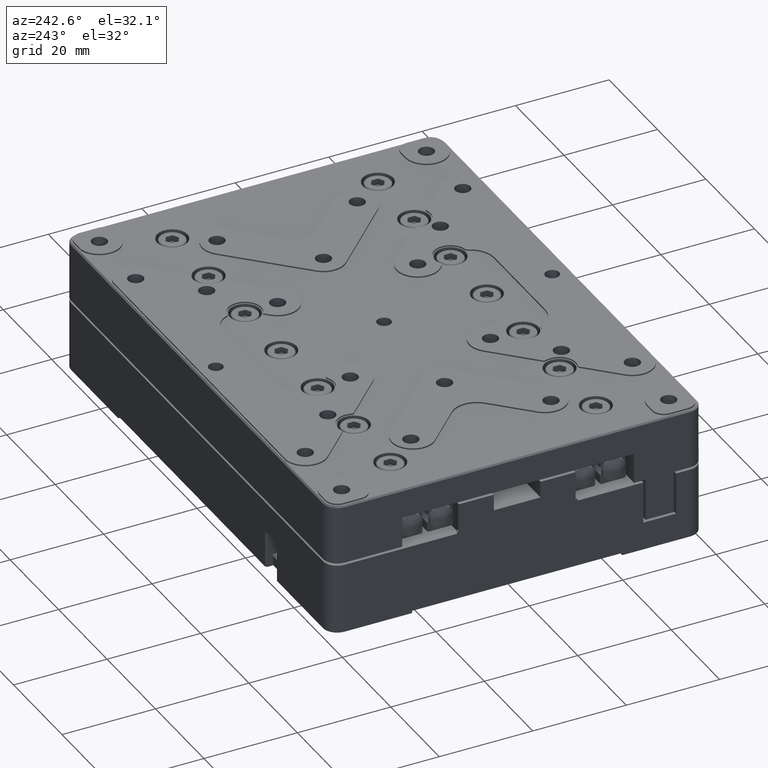
[diagram: clean part render]
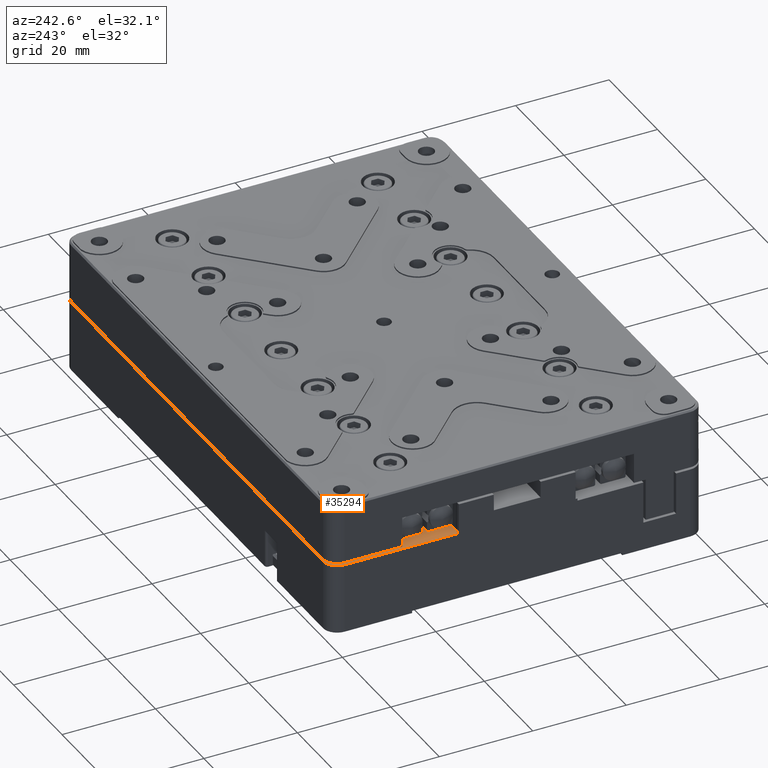
[diagram: same view with one face highlighted and labeled with its STEP entity id]
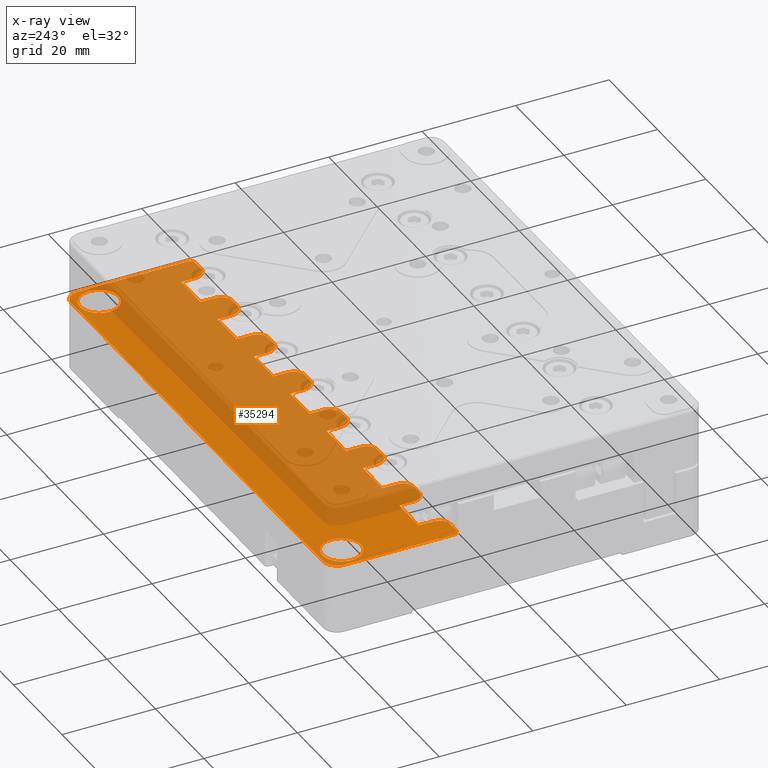
[diagram: x-ray of the same camera — body ghosted, the highlighted face saturated]
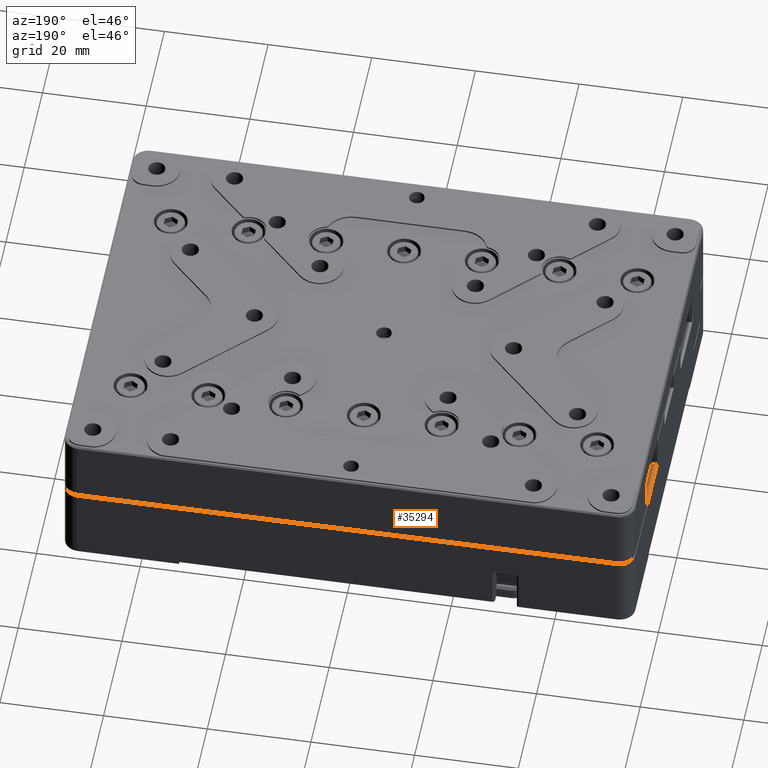
[diagram: same view with one face highlighted and labeled with its STEP entity id]
A machine part, auxiliary view. The second image highlights one B-rep face of the part: STEP entity #35294.
The next image is the same camera in x-ray: the body ghosted, the highlighted face saturated — about 69% of this face is hidden behind the body in this view.
A second angle (auxiliary view) of the same face is appended — the face is thin or edge-on in the first view.
In plain terms, the highlighted planar face has unit normal (0, 0, 1).
Its self-contained STEP definition (entity closure, byte-faithful):
#8 = ORIENTED_EDGE ( 'NONE', *, *, #34213, .T. ) ;
#56 = LINE ( 'NONE', #35349, #21487 ) ;
#88 = CARTESIAN_POINT ( 'NONE',  ( 52.00000000000000000, 37.00000000000000000, 0.000000000000000000 ) ) ;
#169 = CARTESIAN_POINT ( 'NONE',  ( -34.00000000000000000, 14.90000000000000036, 0.000000000000000000 ) ) ;
#237 = DIRECTION ( 'NONE',  ( 0.000000000000000000, -1.000000000000000000, 0.000000000000000000 ) ) ;
#279 = ORIENTED_EDGE ( 'NONE', *, *, #969, .T. ) ;
#371 = DIRECTION ( 'NONE',  ( 0.000000000000000000, 0.000000000000000000, 1.000000000000000000 ) ) ;
#384 = CARTESIAN_POINT ( 'NONE',  ( 41.00000000000000000, 40.00000000000000000, 0.000000000000000000 ) ) ;
#410 = ORIENTED_EDGE ( 'NONE', *, *, #24579, .T. ) ;
#439 = ORIENTED_EDGE ( 'NONE', *, *, #22421, .T. ) ;
#540 = EDGE_CURVE ( 'NONE', #7818, #23297, #7213, .T. ) ;
#548 = LINE ( 'NONE', #11455, #1921 ) ;
#616 = VERTEX_POINT ( 'NONE', #30516 ) ;
#669 = DIRECTION ( 'NONE',  ( 1.000000000000000000, 0.000000000000000000, 0.000000000000000000 ) ) ;
#884 = LINE ( 'NONE', #30964, #9621 ) ;
#904 = CARTESIAN_POINT ( 'NONE',  ( -6.500000000000000000, 14.90000000000000036, 0.000000000000000000 ) ) ;
#969 = EDGE_CURVE ( 'NONE', #1620, #4986, #1879, .T. ) ;
#1012 = VERTEX_POINT ( 'NONE', #9123 ) ;
#1130 = EDGE_CURVE ( 'NONE', #616, #27416, #30072, .T. ) ;
#1194 = LINE ( 'NONE', #6380, #16790 ) ;
#1256 = CARTESIAN_POINT ( 'NONE',  ( -55.00000000000000000, 12.40000000000000036, 0.000000000000000000 ) ) ;
#1257 = DIRECTION ( 'NONE',  ( 1.000000000000000000, 0.000000000000000000, 0.000000000000000000 ) ) ;
#1270 = ORIENTED_EDGE ( 'NONE', *, *, #14767, .T. ) ;
#1307 = AXIS2_PLACEMENT_3D ( 'NONE', #16199, #29673, #13682 ) ;
#1453 = VERTEX_POINT ( 'NONE', #30379 ) ;
#1620 = VERTEX_POINT ( 'NONE', #6376 ) ;
#1879 = CIRCLE ( 'NONE', #34113, 2.500000000000002220 ) ;
#1906 = LINE ( 'NONE', #10151, #13418 ) ;
#1921 = VECTOR ( 'NONE', #22387, 1000.000000000000000 ) ;
#1945 = CIRCLE ( 'NONE', #26524, 2.500000000000002220 ) ;
#2018 = CIRCLE ( 'NONE', #6019, 2.499999999999999556 ) ;
#2057 = AXIS2_PLACEMENT_3D ( 'NONE', #2404, #10302, #15650 ) ;
#2111 = VECTOR ( 'NONE', #20872, 1000.000000000000000 ) ;
#2141 = DIRECTION ( 'NONE',  ( 1.000000000000000000, 0.000000000000000000, 0.000000000000000000 ) ) ;
#2315 = EDGE_CURVE ( 'NONE', #12639, #19228, #13784, .T. ) ;
#2346 = LINE ( 'NONE', #26870, #26574 ) ;
#2404 = CARTESIAN_POINT ( 'NONE',  ( -50.00000000000000000, 35.00000000000000000, 0.000000000000000000 ) ) ;
#2659 = VECTOR ( 'NONE', #5548, 1000.000000000000000 ) ;
#2723 = EDGE_CURVE ( 'NONE', #3722, #11448, #21479, .T. ) ;
#2745 = LINE ( 'NONE', #3091, #22636 ) ;
#2784 = AXIS2_PLACEMENT_3D ( 'NONE', #19147, #22371, #3232 ) ;
#2846 = EDGE_CURVE ( 'NONE', #12173, #3722, #20167, .T. ) ;
#2912 = CARTESIAN_POINT ( 'NONE',  ( -38.50000000000000000, 12.40000000000000036, 0.000000000000000000 ) ) ;
#2963 = ORIENTED_EDGE ( 'NONE', *, *, #31143, .T. ) ;
#3021 = CARTESIAN_POINT ( 'NONE',  ( 36.50000000000000000, 14.90000000000000036, 0.000000000000000000 ) ) ;
#3067 = PLANE ( 'NONE',  #34571 ) ;
#3072 = VERTEX_POINT ( 'NONE', #32505 ) ;
#3091 = CARTESIAN_POINT ( 'NONE',  ( -55.00000000000000000, 12.40000000000000036, 0.000000000000000000 ) ) ;
#3168 = EDGE_CURVE ( 'NONE', #19228, #12739, #14212, .T. ) ;
#3232 = DIRECTION ( 'NONE',  ( 1.000000000000000000, 0.000000000000000000, 0.000000000000000000 ) ) ;
#3278 = DIRECTION ( 'NONE',  ( 1.000000000000000000, 0.000000000000000000, 0.000000000000000000 ) ) ;
#3722 = VERTEX_POINT ( 'NONE', #6304 ) ;
#3865 = DIRECTION ( 'NONE',  ( 0.000000000000000000, -1.000000000000000000, 0.000000000000000000 ) ) ;
#3875 = CARTESIAN_POINT ( 'NONE',  ( 55.00000000000000000, 37.00000000000000000, 0.000000000000000000 ) ) ;
#3953 = LINE ( 'NONE', #1256, #24288 ) ;
#4068 = LINE ( 'NONE', #23575, #19017 ) ;
#4143 = ORIENTED_EDGE ( 'NONE', *, *, #12255, .T. ) ;
#4409 = EDGE_CURVE ( 'NONE', #30259, #12173, #15308, .T. ) ;
#4439 = DIRECTION ( 'NONE',  ( 1.000000000000000000, 0.000000000000000000, 0.000000000000000000 ) ) ;
#4566 = CARTESIAN_POINT ( 'NONE',  ( 4.000000000000000000, 14.90000000000000036, 0.000000000000000000 ) ) ;
#4607 = ORIENTED_EDGE ( 'NONE', *, *, #540, .T. ) ;
#4695 = VECTOR ( 'NONE', #3865, 1000.000000000000000 ) ;
#4728 = VECTOR ( 'NONE', #21970, 1000.000000000000000 ) ;
#4734 = CARTESIAN_POINT ( 'NONE',  ( 54.12500000000000000, 35.00000000000000000, 0.000000000000000000 ) ) ;
#4829 = ORIENTED_EDGE ( 'NONE', *, *, #34368, .T. ) ;
#4844 = CARTESIAN_POINT ( 'NONE',  ( -21.50000000000000000, 12.40000000000000036, 0.000000000000000000 ) ) ;
#4863 = CARTESIAN_POINT ( 'NONE',  ( 41.00000000000000000, 18.00000000000000000, 0.000000000000000000 ) ) ;
#4944 = VERTEX_POINT ( 'NONE', #28589 ) ;
#4986 = VERTEX_POINT ( 'NONE', #7083 ) ;
#5123 = EDGE_CURVE ( 'NONE', #14443, #15917, #10197, .T. ) ;
#5145 = CARTESIAN_POINT ( 'NONE',  ( -6.500000000000000000, 12.40000000000000036, 0.000000000000000000 ) ) ;
#5295 = CARTESIAN_POINT ( 'NONE',  ( -55.00000000000000000, 18.00000000000000000, 0.000000000000000000 ) ) ;
#5299 = AXIS2_PLACEMENT_3D ( 'NONE', #18022, #33966, #34315 ) ;
#5332 = ORIENTED_EDGE ( 'NONE', *, *, #9018, .T. ) ;
#5383 = ORIENTED_EDGE ( 'NONE', *, *, #16714, .T. ) ;
#5418 = CARTESIAN_POINT ( 'NONE',  ( -45.87500000000000000, 35.00000000000000000, 0.000000000000000000 ) ) ;
#5540 = EDGE_CURVE ( 'NONE', #3072, #32799, #18306, .T. ) ;
#5548 = DIRECTION ( 'NONE',  ( 0.000000000000000000, -1.000000000000000000, 0.000000000000000000 ) ) ;
#5655 = CARTESIAN_POINT ( 'NONE',  ( -51.50000000000000000, 12.40000000000000036, 0.000000000000000000 ) ) ;
#5726 = DIRECTION ( 'NONE',  ( 0.000000000000000000, -1.000000000000000000, 0.000000000000000000 ) ) ;
#5742 = FACE_OUTER_BOUND ( 'NONE', #19853, .T. ) ;
#5876 = EDGE_CURVE ( 'NONE', #32799, #31257, #20718, .T. ) ;
#6019 = AXIS2_PLACEMENT_3D ( 'NONE', #904, #17012, #11641 ) ;
#6059 = AXIS2_PLACEMENT_3D ( 'NONE', #31798, #27827, #16689 ) ;
#6067 = VECTOR ( 'NONE', #25594, 1000.000000000000000 ) ;
#6234 = CARTESIAN_POINT ( 'NONE',  ( -4.000000000000000000, 40.00000000000000000, 0.000000000000000000 ) ) ;
#6304 = CARTESIAN_POINT ( 'NONE',  ( -49.00000000000000000, 18.00000000000000000, 0.000000000000000000 ) ) ;
#6376 = CARTESIAN_POINT ( 'NONE',  ( 49.00000000000000000, 14.90000000000000036, 0.000000000000000000 ) ) ;
#6380 = CARTESIAN_POINT ( 'NONE',  ( 55.00000000000000000, 0.000000000000000000, 0.000000000000000000 ) ) ;
#6428 = CARTESIAN_POINT ( 'NONE',  ( -11.00000000000000000, 18.00000000000000000, 0.000000000000000000 ) ) ;
#6627 = EDGE_CURVE ( 'NONE', #14150, #17839, #20821, .T. ) ;
#6630 = VERTEX_POINT ( 'NONE', #23513 ) ;
#6681 = VECTOR ( 'NONE', #8184, 1000.000000000000000 ) ;
#6801 = CARTESIAN_POINT ( 'NONE',  ( -55.00000000000000000, 18.00000000000000000, 0.000000000000000000 ) ) ;
#6883 = ORIENTED_EDGE ( 'NONE', *, *, #23473, .T. ) ;
#6952 = CARTESIAN_POINT ( 'NONE',  ( 11.00000000000000000, 40.00000000000000000, 0.000000000000000000 ) ) ;
#7066 = LINE ( 'NONE', #15292, #4695 ) ;
#7083 = CARTESIAN_POINT ( 'NONE',  ( 51.50000000000000000, 12.40000000000000036, 0.000000000000000000 ) ) ;
#7092 = VERTEX_POINT ( 'NONE', #11846 ) ;
#7136 = CARTESIAN_POINT ( 'NONE',  ( -26.00000000000000000, 40.00000000000000000, 0.000000000000000000 ) ) ;
#7213 = CIRCLE ( 'NONE', #6059, 4.125000000000003553 ) ;
#7229 = ORIENTED_EDGE ( 'NONE', *, *, #2846, .T. ) ;
#7230 = DIRECTION ( 'NONE',  ( 1.000000000000000000, 0.000000000000000000, 0.000000000000000000 ) ) ;
#7364 = ORIENTED_EDGE ( 'NONE', *, *, #12322, .T. ) ;
#7439 = DIRECTION ( 'NONE',  ( 0.000000000000000000, 0.000000000000000000, 1.000000000000000000 ) ) ;
#7466 = VERTEX_POINT ( 'NONE', #6428 ) ;
#7580 = VERTEX_POINT ( 'NONE', #19235 ) ;
#7634 = LINE ( 'NONE', #26787, #29357 ) ;
#7642 = ORIENTED_EDGE ( 'NONE', *, *, #24100, .T. ) ;
#7663 = LINE ( 'NONE', #35222, #6681 ) ;
#7676 = DIRECTION ( 'NONE',  ( 1.000000000000000000, 0.000000000000000000, 0.000000000000000000 ) ) ;
#7741 = ORIENTED_EDGE ( 'NONE', *, *, #14176, .T. ) ;
#7755 = DIRECTION ( 'NONE',  ( 0.000000000000000000, 0.000000000000000000, 1.000000000000000000 ) ) ;
#7818 = VERTEX_POINT ( 'NONE', #33026 ) ;
#7884 = DIRECTION ( 'NONE',  ( 1.000000000000000000, 0.000000000000000000, 0.000000000000000000 ) ) ;
#8054 = LINE ( 'NONE', #13751, #23743 ) ;
#8167 = AXIS2_PLACEMENT_3D ( 'NONE', #88, #10842, #22302 ) ;
#8184 = DIRECTION ( 'NONE',  ( 0.000000000000000000, -1.000000000000000000, 0.000000000000000000 ) ) ;
#8230 = CARTESIAN_POINT ( 'NONE',  ( 19.00000000000000000, 40.00000000000000000, 0.000000000000000000 ) ) ;
#8284 = DIRECTION ( 'NONE',  ( 0.000000000000000000, 0.000000000000000000, 1.000000000000000000 ) ) ;
#8489 = DIRECTION ( 'NONE',  ( 1.000000000000000000, 0.000000000000000000, 0.000000000000000000 ) ) ;
#8746 = CARTESIAN_POINT ( 'NONE',  ( -51.50000000000000000, 14.90000000000000036, 0.000000000000000000 ) ) ;
#8948 = CIRCLE ( 'NONE', #19837, 2.500000000000002220 ) ;
#8995 = CARTESIAN_POINT ( 'NONE',  ( -41.00000000000000000, 14.90000000000000036, 0.000000000000000000 ) ) ;
#9018 = EDGE_CURVE ( 'NONE', #4944, #22047, #9119, .T. ) ;
#9119 = CIRCLE ( 'NONE', #30281, 2.500000000000002220 ) ;
#9123 = CARTESIAN_POINT ( 'NONE',  ( 23.50000000000000000, 12.40000000000000036, 0.000000000000000000 ) ) ;
#9138 = LINE ( 'NONE', #6801, #18220 ) ;
#9281 = ORIENTED_EDGE ( 'NONE', *, *, #23228, .T. ) ;
#9407 = CARTESIAN_POINT ( 'NONE',  ( 4.000000000000000000, 18.00000000000000000, 0.000000000000000000 ) ) ;
#9410 = EDGE_CURVE ( 'NONE', #32393, #1012, #11076, .T. ) ;
#9598 = AXIS2_PLACEMENT_3D ( 'NONE', #18246, #10530, #7676 ) ;
#9604 = AXIS2_PLACEMENT_3D ( 'NONE', #8746, #20025, #19663 ) ;
#9621 = VECTOR ( 'NONE', #35188, 1000.000000000000000 ) ;
#9634 = CARTESIAN_POINT ( 'NONE',  ( 52.00000000000000000, 40.00000000000000000, 0.000000000000000000 ) ) ;
#9751 = CARTESIAN_POINT ( 'NONE',  ( -55.00000000000000000, 18.00000000000000000, 0.000000000000000000 ) ) ;
#9826 = DIRECTION ( 'NONE',  ( 1.000000000000000000, 0.000000000000000000, 0.000000000000000000 ) ) ;
#9988 = CARTESIAN_POINT ( 'NONE',  ( -26.00000000000000000, 14.90000000000000036, 0.000000000000000000 ) ) ;
#10054 = VECTOR ( 'NONE', #237, 1000.000000000000000 ) ;
#10151 = CARTESIAN_POINT ( 'NONE',  ( -55.00000000000000000, 12.40000000000000036, 0.000000000000000000 ) ) ;
#10165 = ORIENTED_EDGE ( 'NONE', *, *, #2315, .T. ) ;
#10197 = CIRCLE ( 'NONE', #30202, 2.499999999999998668 ) ;
#10258 = VERTEX_POINT ( 'NONE', #26424 ) ;
#10302 = DIRECTION ( 'NONE',  ( 0.000000000000000000, 0.000000000000000000, -1.000000000000000000 ) ) ;
#10411 = ORIENTED_EDGE ( 'NONE', *, *, #26366, .T. ) ;
#10482 = DIRECTION ( 'NONE',  ( 1.000000000000000000, 0.000000000000000000, 0.000000000000000000 ) ) ;
#10530 = DIRECTION ( 'NONE',  ( 0.000000000000000000, 0.000000000000000000, -1.000000000000000000 ) ) ;
#10608 = CARTESIAN_POINT ( 'NONE',  ( -23.50000000000000000, 14.90000000000000036, 0.000000000000000000 ) ) ;
#10740 = CARTESIAN_POINT ( 'NONE',  ( -55.00000000000000000, 18.00000000000000000, 0.000000000000000000 ) ) ;
#10842 = DIRECTION ( 'NONE',  ( 0.000000000000000000, 0.000000000000000000, 1.000000000000000000 ) ) ;
#11047 = CARTESIAN_POINT ( 'NONE',  ( 4.000000000000000000, 40.00000000000000000, 0.000000000000000000 ) ) ;
#11052 = CARTESIAN_POINT ( 'NONE',  ( 34.00000000000000000, 18.00000000000000000, 0.000000000000000000 ) ) ;
#11064 = CIRCLE ( 'NONE', #21934, 2.499999999999998668 ) ;
#11076 = LINE ( 'NONE', #16615, #14253 ) ;
#11140 = ORIENTED_EDGE ( 'NONE', *, *, #1130, .T. ) ;
#11153 = CARTESIAN_POINT ( 'NONE',  ( 34.00000000000000000, 14.90000000000000036, 0.000000000000000000 ) ) ;
#11223 = VERTEX_POINT ( 'NONE', #27897 ) ;
#11287 = CIRCLE ( 'NONE', #9598, 4.125000000000003553 ) ;
#11357 = CARTESIAN_POINT ( 'NONE',  ( -8.500000000000000000, 12.40000000000000036, 0.000000000000000000 ) ) ;
#11441 = ORIENTED_EDGE ( 'NONE', *, *, #12424, .T. ) ;
#11448 = VERTEX_POINT ( 'NONE', #34485 ) ;
#11455 = CARTESIAN_POINT ( 'NONE',  ( 34.00000000000000000, 40.00000000000000000, 0.000000000000000000 ) ) ;
#11641 = DIRECTION ( 'NONE',  ( 1.000000000000000000, 0.000000000000000000, 0.000000000000000000 ) ) ;
#11648 = CARTESIAN_POINT ( 'NONE',  ( -55.00000000000000000, 40.00000000000000000, 0.000000000000000000 ) ) ;
#11730 = ORIENTED_EDGE ( 'NONE', *, *, #16761, .T. ) ;
#11846 = CARTESIAN_POINT ( 'NONE',  ( 19.00000000000000000, 18.00000000000000000, 0.000000000000000000 ) ) ;
#12173 = VERTEX_POINT ( 'NONE', #12268 ) ;
#12255 = EDGE_CURVE ( 'NONE', #23297, #7818, #16305, .T. ) ;
#12268 = CARTESIAN_POINT ( 'NONE',  ( -49.00000000000000000, 14.90000000000000036, 0.000000000000000000 ) ) ;
#12322 = EDGE_CURVE ( 'NONE', #11223, #7092, #56, .T. ) ;
#12424 = EDGE_CURVE ( 'NONE', #7466, #10258, #16882, .T. ) ;
#12572 = CARTESIAN_POINT ( 'NONE',  ( 41.00000000000000000, 14.90000000000000036, 0.000000000000000000 ) ) ;
#12639 = VERTEX_POINT ( 'NONE', #12572 ) ;
#12657 = ORIENTED_EDGE ( 'NONE', *, *, #2723, .T. ) ;
#12660 = CARTESIAN_POINT ( 'NONE',  ( -53.50000000000000000, 14.90000000000000036, 0.000000000000000000 ) ) ;
#12739 = VERTEX_POINT ( 'NONE', #14467 ) ;
#12779 = CARTESIAN_POINT ( 'NONE',  ( -23.50000000000000000, 12.40000000000000036, 0.000000000000000000 ) ) ;
#12852 = DIRECTION ( 'NONE',  ( 0.000000000000000000, 0.000000000000000000, 1.000000000000000000 ) ) ;
#12931 = CARTESIAN_POINT ( 'NONE',  ( 6.500000000000000000, 14.90000000000000036, 0.000000000000000000 ) ) ;
#13065 = EDGE_CURVE ( 'NONE', #11448, #25827, #7663, .T. ) ;
#13183 = EDGE_LOOP ( 'NONE', ( #8, #29235 ) ) ;
#13219 = DIRECTION ( 'NONE',  ( 0.000000000000000000, 0.000000000000000000, 1.000000000000000000 ) ) ;
#13258 = CIRCLE ( 'NONE', #31585, 2.500000000000002220 ) ;
#13388 = AXIS2_PLACEMENT_3D ( 'NONE', #10608, #21697, #19529 ) ;
#13418 = VECTOR ( 'NONE', #10482, 1000.000000000000000 ) ;
#13450 = CARTESIAN_POINT ( 'NONE',  ( 6.500000000000000000, 12.40000000000000036, 0.000000000000000000 ) ) ;
#13484 = DIRECTION ( 'NONE',  ( 1.000000000000000000, 0.000000000000000000, 0.000000000000000000 ) ) ;
#13573 = EDGE_CURVE ( 'NONE', #15917, #14819, #34987, .T. ) ;
#13615 = CIRCLE ( 'NONE', #2784, 2.500000000000000444 ) ;
#13682 = DIRECTION ( 'NONE',  ( 1.000000000000000000, 0.000000000000000000, 0.000000000000000000 ) ) ;
#13751 = CARTESIAN_POINT ( 'NONE',  ( -55.00000000000000000, 12.40000000000000036, 0.000000000000000000 ) ) ;
#13756 = LINE ( 'NONE', #22373, #14711 ) ;
#13784 = LINE ( 'NONE', #384, #18072 ) ;
#13829 = CARTESIAN_POINT ( 'NONE',  ( -11.00000000000000000, 40.00000000000000000, 0.000000000000000000 ) ) ;
#13945 = CARTESIAN_POINT ( 'NONE',  ( -4.000000000000000000, 18.00000000000000000, 0.000000000000000000 ) ) ;
#13974 = DIRECTION ( 'NONE',  ( 1.000000000000000000, 0.000000000000000000, 0.000000000000000000 ) ) ;
#14023 = CARTESIAN_POINT ( 'NONE',  ( -55.00000000000000000, 18.00000000000000000, 0.000000000000000000 ) ) ;
#14150 = VERTEX_POINT ( 'NONE', #13450 ) ;
#14176 = EDGE_CURVE ( 'NONE', #25827, #32417, #8948, .T. ) ;
#14212 = LINE ( 'NONE', #14023, #24700 ) ;
#14253 = VECTOR ( 'NONE', #24525, 1000.000000000000000 ) ;
#14302 = CARTESIAN_POINT ( 'NONE',  ( -19.00000000000000000, 14.90000000000000036, 0.000000000000000000 ) ) ;
#14443 = VERTEX_POINT ( 'NONE', #4844 ) ;
#14467 = CARTESIAN_POINT ( 'NONE',  ( 49.00000000000000000, 18.00000000000000000, 0.000000000000000000 ) ) ;
#14480 = EDGE_CURVE ( 'NONE', #7092, #7580, #18957, .T. ) ;
#14602 = VECTOR ( 'NONE', #28731, 1000.000000000000000 ) ;
#14711 = VECTOR ( 'NONE', #5726, 1000.000000000000000 ) ;
#14767 = EDGE_CURVE ( 'NONE', #22047, #3072, #884, .T. ) ;
#14819 = VERTEX_POINT ( 'NONE', #15662 ) ;
#15292 = CARTESIAN_POINT ( 'NONE',  ( -55.00000000000000000, 0.000000000000000000, 0.000000000000000000 ) ) ;
#15308 = CIRCLE ( 'NONE', #9604, 2.500000000000002220 ) ;
#15327 = ORIENTED_EDGE ( 'NONE', *, *, #13573, .T. ) ;
#15444 = VECTOR ( 'NONE', #28437, 1000.000000000000000 ) ;
#15456 = ORIENTED_EDGE ( 'NONE', *, *, #15808, .T. ) ;
#15502 = DIRECTION ( 'NONE',  ( 1.000000000000000000, 0.000000000000000000, 0.000000000000000000 ) ) ;
#15650 = DIRECTION ( 'NONE',  ( 1.000000000000000000, 0.000000000000000000, 0.000000000000000000 ) ) ;
#15662 = CARTESIAN_POINT ( 'NONE',  ( -19.00000000000000000, 18.00000000000000000, 0.000000000000000000 ) ) ;
#15760 = VERTEX_POINT ( 'NONE', #13945 ) ;
#15808 = EDGE_CURVE ( 'NONE', #12739, #1620, #13756, .T. ) ;
#15917 = VERTEX_POINT ( 'NONE', #14302 ) ;
#16046 = VERTEX_POINT ( 'NONE', #31580 ) ;
#16199 = CARTESIAN_POINT ( 'NONE',  ( 53.50000000000000000, 14.90000000000000036, 0.000000000000000000 ) ) ;
#16259 = ORIENTED_EDGE ( 'NONE', *, *, #5876, .T. ) ;
#16305 = CIRCLE ( 'NONE', #2057, 4.125000000000003553 ) ;
#16615 = CARTESIAN_POINT ( 'NONE',  ( -55.00000000000000000, 12.40000000000000036, 0.000000000000000000 ) ) ;
#16639 = FACE_BOUND ( 'NONE', #13183, .T. ) ;
#16689 = DIRECTION ( 'NONE',  ( 1.000000000000000000, 0.000000000000000000, 0.000000000000000000 ) ) ;
#16714 = EDGE_CURVE ( 'NONE', #10258, #20114, #13615, .T. ) ;
#16761 = EDGE_CURVE ( 'NONE', #14819, #7466, #9138, .T. ) ;
#16790 = VECTOR ( 'NONE', #17291, 1000.000000000000000 ) ;
#16882 = LINE ( 'NONE', #13829, #10054 ) ;
#16958 = LINE ( 'NONE', #6234, #15444 ) ;
#16982 = EDGE_CURVE ( 'NONE', #18207, #30566, #11287, .T. ) ;
#17012 = DIRECTION ( 'NONE',  ( 0.000000000000000000, 0.000000000000000000, 1.000000000000000000 ) ) ;
#17291 = DIRECTION ( 'NONE',  ( 0.000000000000000000, -1.000000000000000000, 0.000000000000000000 ) ) ;
#17303 = ORIENTED_EDGE ( 'NONE', *, *, #13065, .T. ) ;
#17839 = VERTEX_POINT ( 'NONE', #35286 ) ;
#17919 = CARTESIAN_POINT ( 'NONE',  ( 23.50000000000000000, 14.90000000000000036, 0.000000000000000000 ) ) ;
#17961 = CARTESIAN_POINT ( 'NONE',  ( -55.00000000000000000, 12.40000000000000036, 0.000000000000000000 ) ) ;
#17987 = ORIENTED_EDGE ( 'NONE', *, *, #26107, .T. ) ;
#18014 = CARTESIAN_POINT ( 'NONE',  ( -49.00000000000000000, 40.00000000000000000, 0.000000000000000000 ) ) ;
#18022 = CARTESIAN_POINT ( 'NONE',  ( -52.00000000000000000, 37.00000000000000000, 0.000000000000000000 ) ) ;
#18039 = VECTOR ( 'NONE', #31985, 1000.000000000000000 ) ;
#18047 = DIRECTION ( 'NONE',  ( 0.000000000000000000, -1.000000000000000000, 0.000000000000000000 ) ) ;
#18067 = ORIENTED_EDGE ( 'NONE', *, *, #19306, .T. ) ;
#18072 = VECTOR ( 'NONE', #24388, 1000.000000000000000 ) ;
#18102 = DIRECTION ( 'NONE',  ( 0.000000000000000000, 0.000000000000000000, 1.000000000000000000 ) ) ;
#18104 = AXIS2_PLACEMENT_3D ( 'NONE', #12660, #12852, #2141 ) ;
#18174 = CARTESIAN_POINT ( 'NONE',  ( 38.50000000000000000, 14.90000000000000036, 0.000000000000000000 ) ) ;
#18207 = VERTEX_POINT ( 'NONE', #20405 ) ;
#18220 = VECTOR ( 'NONE', #9826, 1000.000000000000000 ) ;
#18246 = CARTESIAN_POINT ( 'NONE',  ( 50.00000000000000000, 35.00000000000000000, 0.000000000000000000 ) ) ;
#18306 = LINE ( 'NONE', #26546, #34797 ) ;
#18372 = CARTESIAN_POINT ( 'NONE',  ( 11.00000000000000000, 14.90000000000000036, 0.000000000000000000 ) ) ;
#18392 = VERTEX_POINT ( 'NONE', #11052 ) ;
#18413 = CIRCLE ( 'NONE', #21824, 2.500000000000000444 ) ;
#18544 = ORIENTED_EDGE ( 'NONE', *, *, #28074, .T. ) ;
#18545 = DIRECTION ( 'NONE',  ( -1.000000000000000000, 0.000000000000000000, 0.000000000000000000 ) ) ;
#18568 = AXIS2_PLACEMENT_3D ( 'NONE', #17919, #18102, #18627 ) ;
#18627 = DIRECTION ( 'NONE',  ( 1.000000000000000000, 0.000000000000000000, 0.000000000000000000 ) ) ;
#18957 = LINE ( 'NONE', #8230, #2659 ) ;
#19017 = VECTOR ( 'NONE', #4439, 1000.000000000000000 ) ;
#19019 = CIRCLE ( 'NONE', #5299, 3.000000000000002665 ) ;
#19094 = VERTEX_POINT ( 'NONE', #9407 ) ;
#19131 = EDGE_CURVE ( 'NONE', #20114, #24635, #2346, .T. ) ;
#19147 = CARTESIAN_POINT ( 'NONE',  ( -8.500000000000000000, 14.90000000000000036, 0.000000000000000000 ) ) ;
#19228 = VERTEX_POINT ( 'NONE', #4863 ) ;
#19235 = CARTESIAN_POINT ( 'NONE',  ( 19.00000000000000000, 14.90000000000000036, 0.000000000000000000 ) ) ;
#19306 = EDGE_CURVE ( 'NONE', #24635, #24273, #2018, .T. ) ;
#19318 = CARTESIAN_POINT ( 'NONE',  ( 26.00000000000000000, 40.00000000000000000, 0.000000000000000000 ) ) ;
#19467 = EDGE_CURVE ( 'NONE', #4986, #22332, #3953, .T. ) ;
#19529 = DIRECTION ( 'NONE',  ( 1.000000000000000000, 0.000000000000000000, 0.000000000000000000 ) ) ;
#19636 = CIRCLE ( 'NONE', #32773, 4.125000000000003553 ) ;
#19663 = DIRECTION ( 'NONE',  ( 1.000000000000000000, 0.000000000000000000, 0.000000000000000000 ) ) ;
#19837 = AXIS2_PLACEMENT_3D ( 'NONE', #22046, #27604, #13974 ) ;
#19853 = EDGE_LOOP ( 'NONE', ( #7642, #29761, #21804, #33028, #22431, #9281, #30232, #10411, #23815, #7229, #12657, #17303, #7741, #24531, #5332, #1270, #28038, #16259, #26984, #26717, #21007, #15327, #11730, #11441, #5383, #22857, #18067, #18544, #20419, #439, #28498, #25319, #6883, #410, #7364, #33558, #4829, #23753, #26875, #11140, #34550, #32283, #2963, #17987, #29313, #10165, #21128, #15456, #279, #24714 ) ) ;
#20025 = DIRECTION ( 'NONE',  ( 0.000000000000000000, 0.000000000000000000, 1.000000000000000000 ) ) ;
#20114 = VERTEX_POINT ( 'NONE', #11357 ) ;
#20167 = LINE ( 'NONE', #18014, #2111 ) ;
#20228 = EDGE_CURVE ( 'NONE', #33308, #14150, #30565, .T. ) ;
#20334 = VERTEX_POINT ( 'NONE', #30302 ) ;
#20368 = EDGE_CURVE ( 'NONE', #31257, #34688, #31155, .T. ) ;
#20405 = CARTESIAN_POINT ( 'NONE',  ( 45.87500000000000000, 35.00000000000000000, 0.000000000000000000 ) ) ;
#20419 = ORIENTED_EDGE ( 'NONE', *, *, #31371, .T. ) ;
#20455 = VERTEX_POINT ( 'NONE', #22048 ) ;
#20718 = LINE ( 'NONE', #7136, #25071 ) ;
#20821 = LINE ( 'NONE', #17961, #34754 ) ;
#20872 = DIRECTION ( 'NONE',  ( 0.000000000000000000, 1.000000000000000000, 0.000000000000000000 ) ) ;
#21007 = ORIENTED_EDGE ( 'NONE', *, *, #5123, .T. ) ;
#21128 = ORIENTED_EDGE ( 'NONE', *, *, #3168, .T. ) ;
#21208 = DIRECTION ( 'NONE',  ( 0.000000000000000000, 0.000000000000000000, 1.000000000000000000 ) ) ;
#21311 = CARTESIAN_POINT ( 'NONE',  ( -52.00000000000000000, 40.00000000000000000, 0.000000000000000000 ) ) ;
#21479 = LINE ( 'NONE', #10740, #34108 ) ;
#21487 = VECTOR ( 'NONE', #8489, 1000.000000000000000 ) ;
#21602 = EDGE_CURVE ( 'NONE', #32417, #4944, #2745, .T. ) ;
#21697 = DIRECTION ( 'NONE',  ( 0.000000000000000000, 0.000000000000000000, 1.000000000000000000 ) ) ;
#21759 = CARTESIAN_POINT ( 'NONE',  ( 21.50000000000000000, 14.90000000000000036, 0.000000000000000000 ) ) ;
#21804 = ORIENTED_EDGE ( 'NONE', *, *, #30222, .T. ) ;
#21809 = DIRECTION ( 'NONE',  ( 1.000000000000000000, 0.000000000000000000, 0.000000000000000000 ) ) ;
#21824 = AXIS2_PLACEMENT_3D ( 'NONE', #33161, #8284, #30149 ) ;
#21934 = AXIS2_PLACEMENT_3D ( 'NONE', #21759, #35018, #29678 ) ;
#21970 = DIRECTION ( 'NONE',  ( 0.000000000000000000, -1.000000000000000000, 0.000000000000000000 ) ) ;
#21983 = VERTEX_POINT ( 'NONE', #21311 ) ;
#22018 = CARTESIAN_POINT ( 'NONE',  ( 26.00000000000000000, 18.00000000000000000, 0.000000000000000000 ) ) ;
#22046 = CARTESIAN_POINT ( 'NONE',  ( -38.50000000000000000, 14.90000000000000036, 0.000000000000000000 ) ) ;
#22047 = VERTEX_POINT ( 'NONE', #169 ) ;
#22048 = CARTESIAN_POINT ( 'NONE',  ( -53.50000000000000000, 12.40000000000000036, 0.000000000000000000 ) ) ;
#22113 = CIRCLE ( 'NONE', #18104, 2.500000000000002220 ) ;
#22302 = DIRECTION ( 'NONE',  ( 1.000000000000000000, 0.000000000000000000, 0.000000000000000000 ) ) ;
#22332 = VERTEX_POINT ( 'NONE', #29355 ) ;
#22337 = EDGE_CURVE ( 'NONE', #20334, #20455, #22113, .T. ) ;
#22371 = DIRECTION ( 'NONE',  ( 0.000000000000000000, 0.000000000000000000, 1.000000000000000000 ) ) ;
#22373 = CARTESIAN_POINT ( 'NONE',  ( 49.00000000000000000, 40.00000000000000000, 0.000000000000000000 ) ) ;
#22387 = DIRECTION ( 'NONE',  ( 0.000000000000000000, -1.000000000000000000, 0.000000000000000000 ) ) ;
#22421 = EDGE_CURVE ( 'NONE', #19094, #33308, #35411, .T. ) ;
#22431 = ORIENTED_EDGE ( 'NONE', *, *, #22850, .T. ) ;
#22636 = VECTOR ( 'NONE', #3278, 1000.000000000000000 ) ;
#22850 = EDGE_CURVE ( 'NONE', #21983, #1453, #19019, .T. ) ;
#22857 = ORIENTED_EDGE ( 'NONE', *, *, #19131, .T. ) ;
#22940 = EDGE_CURVE ( 'NONE', #24097, #21983, #7634, .T. ) ;
#23228 = EDGE_CURVE ( 'NONE', #1453, #20334, #7066, .T. ) ;
#23289 = CARTESIAN_POINT ( 'NONE',  ( 50.00000000000000000, 35.00000000000000000, 0.000000000000000000 ) ) ;
#23297 = VERTEX_POINT ( 'NONE', #5418 ) ;
#23473 = EDGE_CURVE ( 'NONE', #17839, #31441, #18413, .T. ) ;
#23513 = CARTESIAN_POINT ( 'NONE',  ( 38.50000000000000000, 12.40000000000000036, 0.000000000000000000 ) ) ;
#23540 = DIRECTION ( 'NONE',  ( 0.000000000000000000, 0.000000000000000000, 1.000000000000000000 ) ) ;
#23575 = CARTESIAN_POINT ( 'NONE',  ( -55.00000000000000000, 12.40000000000000036, 0.000000000000000000 ) ) ;
#23610 = CIRCLE ( 'NONE', #1307, 2.500000000000002220 ) ;
#23743 = VECTOR ( 'NONE', #24686, 1000.000000000000000 ) ;
#23753 = ORIENTED_EDGE ( 'NONE', *, *, #9410, .T. ) ;
#23815 = ORIENTED_EDGE ( 'NONE', *, *, #4409, .T. ) ;
#24054 = EDGE_CURVE ( 'NONE', #34688, #14443, #4068, .T. ) ;
#24097 = VERTEX_POINT ( 'NONE', #9634 ) ;
#24100 = EDGE_CURVE ( 'NONE', #22332, #16046, #23610, .T. ) ;
#24103 = LINE ( 'NONE', #5295, #30460 ) ;
#24273 = VERTEX_POINT ( 'NONE', #30699 ) ;
#24288 = VECTOR ( 'NONE', #25624, 1000.000000000000000 ) ;
#24338 = CARTESIAN_POINT ( 'NONE',  ( 51.50000000000000000, 14.90000000000000036, 0.000000000000000000 ) ) ;
#24388 = DIRECTION ( 'NONE',  ( 0.000000000000000000, 1.000000000000000000, 0.000000000000000000 ) ) ;
#24525 = DIRECTION ( 'NONE',  ( 1.000000000000000000, 0.000000000000000000, 0.000000000000000000 ) ) ;
#24531 = ORIENTED_EDGE ( 'NONE', *, *, #21602, .T. ) ;
#24579 = EDGE_CURVE ( 'NONE', #31441, #11223, #28281, .T. ) ;
#24602 = DIRECTION ( 'NONE',  ( 1.000000000000000000, 0.000000000000000000, 0.000000000000000000 ) ) ;
#24635 = VERTEX_POINT ( 'NONE', #5145 ) ;
#24686 = DIRECTION ( 'NONE',  ( 1.000000000000000000, 0.000000000000000000, 0.000000000000000000 ) ) ;
#24700 = VECTOR ( 'NONE', #24602, 1000.000000000000000 ) ;
#24714 = ORIENTED_EDGE ( 'NONE', *, *, #19467, .T. ) ;
#24898 = DIRECTION ( 'NONE',  ( 1.000000000000000000, 0.000000000000000000, 0.000000000000000000 ) ) ;
#25036 = EDGE_CURVE ( 'NONE', #34468, #16046, #1194, .T. ) ;
#25071 = VECTOR ( 'NONE', #18047, 1000.000000000000000 ) ;
#25319 = ORIENTED_EDGE ( 'NONE', *, *, #6627, .T. ) ;
#25594 = DIRECTION ( 'NONE',  ( 0.000000000000000000, 1.000000000000000000, 0.000000000000000000 ) ) ;
#25624 = DIRECTION ( 'NONE',  ( 1.000000000000000000, 0.000000000000000000, 0.000000000000000000 ) ) ;
#25827 = VERTEX_POINT ( 'NONE', #8995 ) ;
#25975 = EDGE_CURVE ( 'NONE', #1012, #616, #28309, .T. ) ;
#26107 = EDGE_CURVE ( 'NONE', #28662, #6630, #8054, .T. ) ;
#26291 = DIRECTION ( 'NONE',  ( 0.000000000000000000, 1.000000000000000000, 0.000000000000000000 ) ) ;
#26366 = EDGE_CURVE ( 'NONE', #20455, #30259, #1906, .T. ) ;
#26424 = CARTESIAN_POINT ( 'NONE',  ( -11.00000000000000000, 14.90000000000000036, 0.000000000000000000 ) ) ;
#26524 = AXIS2_PLACEMENT_3D ( 'NONE', #18174, #23540, #34458 ) ;
#26546 = CARTESIAN_POINT ( 'NONE',  ( -55.00000000000000000, 18.00000000000000000, 0.000000000000000000 ) ) ;
#26569 = EDGE_CURVE ( 'NONE', #27416, #18392, #28566, .T. ) ;
#26574 = VECTOR ( 'NONE', #29750, 1000.000000000000000 ) ;
#26717 = ORIENTED_EDGE ( 'NONE', *, *, #24054, .T. ) ;
#26787 = CARTESIAN_POINT ( 'NONE',  ( -55.00000000000000000, 40.00000000000000000, 0.000000000000000000 ) ) ;
#26870 = CARTESIAN_POINT ( 'NONE',  ( -55.00000000000000000, 12.40000000000000036, 0.000000000000000000 ) ) ;
#26875 = ORIENTED_EDGE ( 'NONE', *, *, #25975, .T. ) ;
#26984 = ORIENTED_EDGE ( 'NONE', *, *, #20368, .T. ) ;
#27057 = VECTOR ( 'NONE', #26291, 1000.000000000000000 ) ;
#27114 = CARTESIAN_POINT ( 'NONE',  ( -19.00000000000000000, 40.00000000000000000, 0.000000000000000000 ) ) ;
#27291 = CARTESIAN_POINT ( 'NONE',  ( -21.50000000000000000, 14.90000000000000036, 0.000000000000000000 ) ) ;
#27416 = VERTEX_POINT ( 'NONE', #22018 ) ;
#27539 = DIRECTION ( 'NONE',  ( 0.000000000000000000, 0.000000000000000000, 1.000000000000000000 ) ) ;
#27604 = DIRECTION ( 'NONE',  ( 0.000000000000000000, 0.000000000000000000, 1.000000000000000000 ) ) ;
#27693 = AXIS2_PLACEMENT_3D ( 'NONE', #12931, #7755, #7230 ) ;
#27720 = CARTESIAN_POINT ( 'NONE',  ( -26.00000000000000000, 18.00000000000000000, 0.000000000000000000 ) ) ;
#27827 = DIRECTION ( 'NONE',  ( 0.000000000000000000, 0.000000000000000000, -1.000000000000000000 ) ) ;
#27897 = CARTESIAN_POINT ( 'NONE',  ( 11.00000000000000000, 18.00000000000000000, 0.000000000000000000 ) ) ;
#28038 = ORIENTED_EDGE ( 'NONE', *, *, #5540, .T. ) ;
#28074 = EDGE_CURVE ( 'NONE', #24273, #15760, #16958, .T. ) ;
#28163 = VERTEX_POINT ( 'NONE', #11153 ) ;
#28281 = LINE ( 'NONE', #6952, #27057 ) ;
#28309 = CIRCLE ( 'NONE', #18568, 2.499999999999998668 ) ;
#28437 = DIRECTION ( 'NONE',  ( 0.000000000000000000, 1.000000000000000000, 0.000000000000000000 ) ) ;
#28498 = ORIENTED_EDGE ( 'NONE', *, *, #20228, .T. ) ;
#28566 = LINE ( 'NONE', #9751, #14602 ) ;
#28589 = CARTESIAN_POINT ( 'NONE',  ( -36.50000000000000000, 12.40000000000000036, 0.000000000000000000 ) ) ;
#28662 = VERTEX_POINT ( 'NONE', #33429 ) ;
#28731 = DIRECTION ( 'NONE',  ( 1.000000000000000000, 0.000000000000000000, 0.000000000000000000 ) ) ;
#29235 = ORIENTED_EDGE ( 'NONE', *, *, #16982, .T. ) ;
#29313 = ORIENTED_EDGE ( 'NONE', *, *, #34583, .T. ) ;
#29355 = CARTESIAN_POINT ( 'NONE',  ( 53.50000000000000000, 12.40000000000000036, 0.000000000000000000 ) ) ;
#29357 = VECTOR ( 'NONE', #18545, 1000.000000000000000 ) ;
#29673 = DIRECTION ( 'NONE',  ( 0.000000000000000000, 0.000000000000000000, 1.000000000000000000 ) ) ;
#29678 = DIRECTION ( 'NONE',  ( 1.000000000000000000, 0.000000000000000000, 0.000000000000000000 ) ) ;
#29750 = DIRECTION ( 'NONE',  ( 1.000000000000000000, 0.000000000000000000, 0.000000000000000000 ) ) ;
#29761 = ORIENTED_EDGE ( 'NONE', *, *, #25036, .F. ) ;
#30072 = LINE ( 'NONE', #19318, #6067 ) ;
#30149 = DIRECTION ( 'NONE',  ( 1.000000000000000000, 0.000000000000000000, 0.000000000000000000 ) ) ;
#30202 = AXIS2_PLACEMENT_3D ( 'NONE', #27291, #7439, #13484 ) ;
#30222 = EDGE_CURVE ( 'NONE', #34468, #24097, #34466, .T. ) ;
#30232 = ORIENTED_EDGE ( 'NONE', *, *, #22337, .T. ) ;
#30259 = VERTEX_POINT ( 'NONE', #5655 ) ;
#30281 = AXIS2_PLACEMENT_3D ( 'NONE', #34992, #21208, #35358 ) ;
#30302 = CARTESIAN_POINT ( 'NONE',  ( -55.00000000000000000, 12.90000000000000036, 0.000000000000000000 ) ) ;
#30379 = CARTESIAN_POINT ( 'NONE',  ( -55.00000000000000000, 37.00000000000000000, 0.000000000000000000 ) ) ;
#30460 = VECTOR ( 'NONE', #15502, 1000.000000000000000 ) ;
#30516 = CARTESIAN_POINT ( 'NONE',  ( 26.00000000000000000, 14.90000000000000036, 0.000000000000000000 ) ) ;
#30565 = CIRCLE ( 'NONE', #27693, 2.499999999999999556 ) ;
#30566 = VERTEX_POINT ( 'NONE', #4734 ) ;
#30699 = CARTESIAN_POINT ( 'NONE',  ( -4.000000000000000000, 14.90000000000000036, 0.000000000000000000 ) ) ;
#30964 = CARTESIAN_POINT ( 'NONE',  ( -34.00000000000000000, 40.00000000000000000, 0.000000000000000000 ) ) ;
#31143 = EDGE_CURVE ( 'NONE', #28163, #28662, #13258, .T. ) ;
#31155 = CIRCLE ( 'NONE', #13388, 2.499999999999998668 ) ;
#31164 = CARTESIAN_POINT ( 'NONE',  ( 21.50000000000000000, 12.40000000000000036, 0.000000000000000000 ) ) ;
#31257 = VERTEX_POINT ( 'NONE', #9988 ) ;
#31371 = EDGE_CURVE ( 'NONE', #15760, #19094, #24103, .T. ) ;
#31441 = VERTEX_POINT ( 'NONE', #18372 ) ;
#31580 = CARTESIAN_POINT ( 'NONE',  ( 55.00000000000000000, 12.90000000000000036, 0.000000000000000000 ) ) ;
#31585 = AXIS2_PLACEMENT_3D ( 'NONE', #3021, #27539, #669 ) ;
#31798 = CARTESIAN_POINT ( 'NONE',  ( -50.00000000000000000, 35.00000000000000000, 0.000000000000000000 ) ) ;
#31985 = DIRECTION ( 'NONE',  ( 0.000000000000000000, 1.000000000000000000, 0.000000000000000000 ) ) ;
#32283 = ORIENTED_EDGE ( 'NONE', *, *, #34058, .T. ) ;
#32393 = VERTEX_POINT ( 'NONE', #31164 ) ;
#32417 = VERTEX_POINT ( 'NONE', #2912 ) ;
#32505 = CARTESIAN_POINT ( 'NONE',  ( -34.00000000000000000, 18.00000000000000000, 0.000000000000000000 ) ) ;
#32773 = AXIS2_PLACEMENT_3D ( 'NONE', #23289, #33677, #1257 ) ;
#32799 = VERTEX_POINT ( 'NONE', #27720 ) ;
#33026 = CARTESIAN_POINT ( 'NONE',  ( -54.12500000000000000, 35.00000000000000000, 0.000000000000000000 ) ) ;
#33028 = ORIENTED_EDGE ( 'NONE', *, *, #22940, .T. ) ;
#33161 = CARTESIAN_POINT ( 'NONE',  ( 8.500000000000000000, 14.90000000000000036, 0.000000000000000000 ) ) ;
#33308 = VERTEX_POINT ( 'NONE', #4566 ) ;
#33429 = CARTESIAN_POINT ( 'NONE',  ( 36.50000000000000000, 12.40000000000000036, 0.000000000000000000 ) ) ;
#33489 = FACE_BOUND ( 'NONE', #34817, .T. ) ;
#33558 = ORIENTED_EDGE ( 'NONE', *, *, #14480, .T. ) ;
#33677 = DIRECTION ( 'NONE',  ( 0.000000000000000000, 0.000000000000000000, -1.000000000000000000 ) ) ;
#33966 = DIRECTION ( 'NONE',  ( 0.000000000000000000, 0.000000000000000000, 1.000000000000000000 ) ) ;
#34058 = EDGE_CURVE ( 'NONE', #18392, #28163, #548, .T. ) ;
#34108 = VECTOR ( 'NONE', #7884, 1000.000000000000000 ) ;
#34113 = AXIS2_PLACEMENT_3D ( 'NONE', #24338, #13219, #21809 ) ;
#34213 = EDGE_CURVE ( 'NONE', #30566, #18207, #19636, .T. ) ;
#34315 = DIRECTION ( 'NONE',  ( -1.000000000000000000, 0.000000000000000000, 0.000000000000000000 ) ) ;
#34368 = EDGE_CURVE ( 'NONE', #7580, #32393, #11064, .T. ) ;
#34425 = DIRECTION ( 'NONE',  ( 1.000000000000000000, 0.000000000000000000, 0.000000000000000000 ) ) ;
#34458 = DIRECTION ( 'NONE',  ( 1.000000000000000000, 0.000000000000000000, 0.000000000000000000 ) ) ;
#34466 = CIRCLE ( 'NONE', #8167, 3.000000000000002665 ) ;
#34468 = VERTEX_POINT ( 'NONE', #3875 ) ;
#34485 = CARTESIAN_POINT ( 'NONE',  ( -41.00000000000000000, 18.00000000000000000, 0.000000000000000000 ) ) ;
#34550 = ORIENTED_EDGE ( 'NONE', *, *, #26569, .T. ) ;
#34571 = AXIS2_PLACEMENT_3D ( 'NONE', #11648, #371, #24898 ) ;
#34583 = EDGE_CURVE ( 'NONE', #6630, #12639, #1945, .T. ) ;
#34604 = DIRECTION ( 'NONE',  ( 1.000000000000000000, 0.000000000000000000, 0.000000000000000000 ) ) ;
#34688 = VERTEX_POINT ( 'NONE', #12779 ) ;
#34754 = VECTOR ( 'NONE', #34425, 1000.000000000000000 ) ;
#34797 = VECTOR ( 'NONE', #34604, 1000.000000000000000 ) ;
#34817 = EDGE_LOOP ( 'NONE', ( #4143, #4607 ) ) ;
#34987 = LINE ( 'NONE', #27114, #18039 ) ;
#34992 = CARTESIAN_POINT ( 'NONE',  ( -36.50000000000000000, 14.90000000000000036, 0.000000000000000000 ) ) ;
#35018 = DIRECTION ( 'NONE',  ( 0.000000000000000000, 0.000000000000000000, 1.000000000000000000 ) ) ;
#35188 = DIRECTION ( 'NONE',  ( 0.000000000000000000, 1.000000000000000000, 0.000000000000000000 ) ) ;
#35222 = CARTESIAN_POINT ( 'NONE',  ( -41.00000000000000000, 40.00000000000000000, 0.000000000000000000 ) ) ;
#35286 = CARTESIAN_POINT ( 'NONE',  ( 8.500000000000000000, 12.40000000000000036, 0.000000000000000000 ) ) ;
#35294 = ADVANCED_FACE ( 'NONE', ( #5742, #33489, #16639 ), #3067, .T. ) ;
#35349 = CARTESIAN_POINT ( 'NONE',  ( -55.00000000000000000, 18.00000000000000000, 0.000000000000000000 ) ) ;
#35358 = DIRECTION ( 'NONE',  ( 1.000000000000000000, 0.000000000000000000, 0.000000000000000000 ) ) ;
#35411 = LINE ( 'NONE', #11047, #4728 ) ;